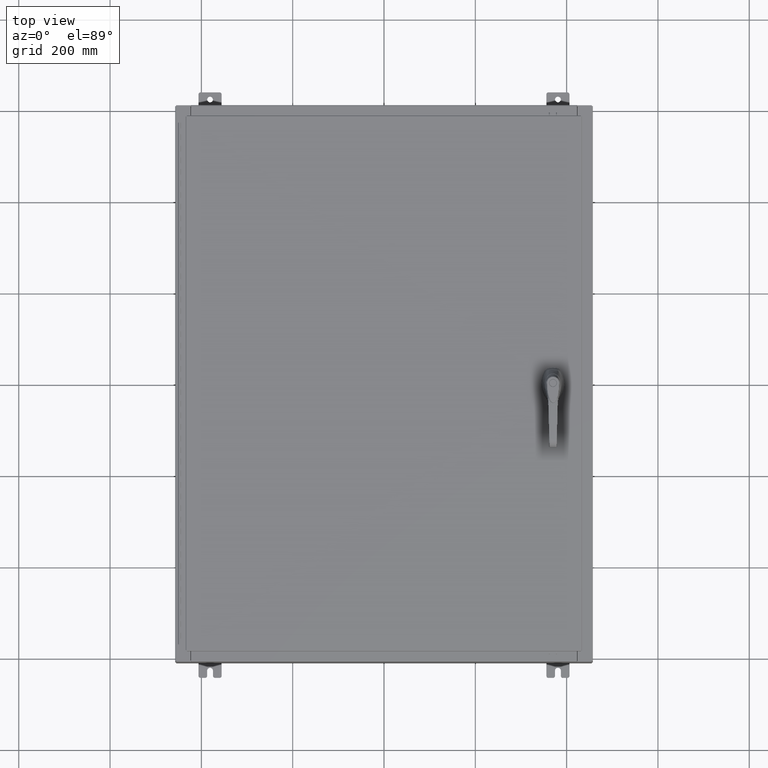
[diagram: clean part render]
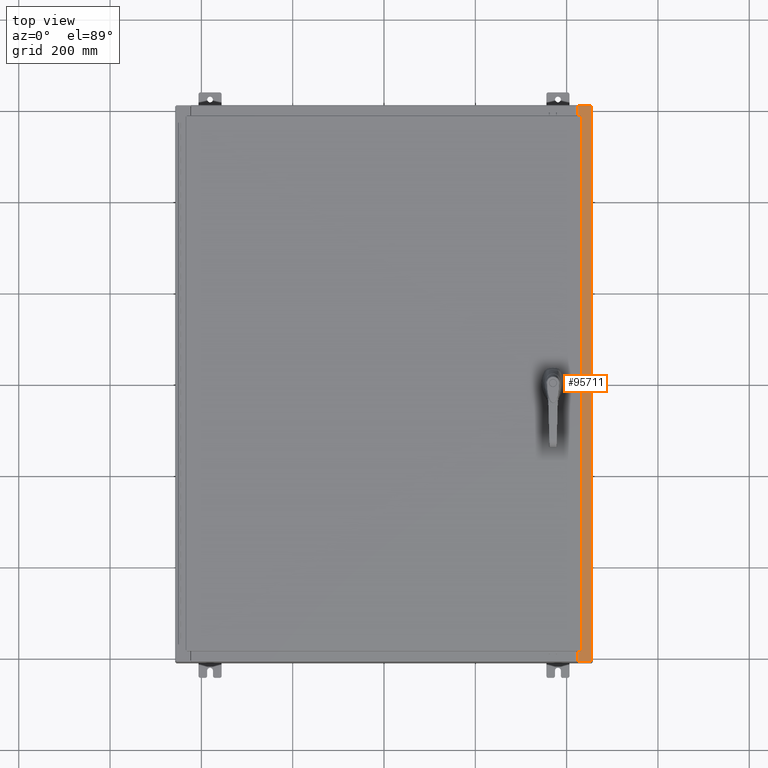
[diagram: same view with one face highlighted and labeled with its STEP entity id]
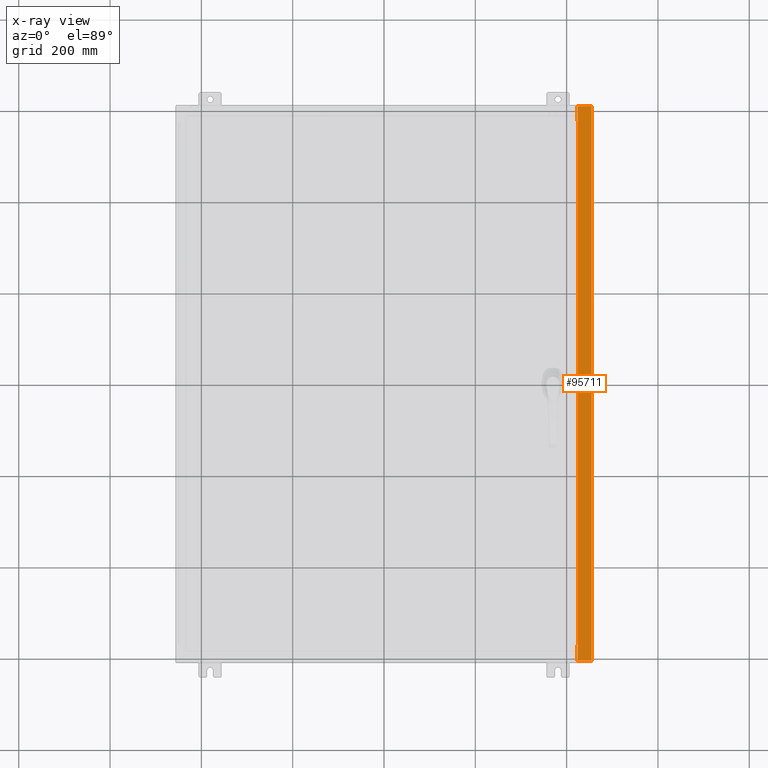
[diagram: x-ray of the same camera — body ghosted, the highlighted face saturated]
A machine part, top view. The second image highlights one B-rep face of the part: STEP entity #95711.
The next image is the same camera in x-ray: the body ghosted, the highlighted face saturated — about 0% of this face is hidden behind the body in this view.
In plain terms, the highlighted planar face has unit normal (-0, 0, -1).
Its self-contained STEP definition (entity closure, byte-faithful):
#1515 = EDGE_CURVE ( 'NONE', #133723, #5691, #109047, .T. ) ;
#1609 = CARTESIAN_POINT ( 'NONE',  ( 16.75005000000002300, 22.63109999999996800, 7.925300000000006200 ) ) ;
#3708 = AXIS2_PLACEMENT_3D ( 'NONE', #106679, #44561, #117106 ) ;
#5015 = VECTOR ( 'NONE', #61032, 39.37007874015748100 ) ;
#5691 = VERTEX_POINT ( 'NONE', #1609 ) ;
#8088 = DIRECTION ( 'NONE',  ( -1.000000000000000000, 2.189528850507527200E-047, 6.241167087353087800E-015 ) ) ;
#9001 = CARTESIAN_POINT ( 'NONE',  ( 17.91230000000002300, 23.92529999999998600, 7.925300000000000000 ) ) ;
#13129 = LINE ( 'NONE', #102741, #34221 ) ;
#14428 = EDGE_CURVE ( 'NONE', #61180, #38561, #38467, .T. ) ;
#14431 = VERTEX_POINT ( 'NONE', #42089 ) ;
#14771 = LINE ( 'NONE', #70241, #121909 ) ;
#15008 = DIRECTION ( 'NONE',  ( -1.615990860825944700E-031, -1.000000000000000000, 1.008566897405026800E-045 ) ) ;
#17093 = ORIENTED_EDGE ( 'NONE', *, *, #108422, .F. ) ;
#18640 = LINE ( 'NONE', #77203, #128870 ) ;
#19012 = EDGE_CURVE ( 'NONE', #124026, #14431, #79773, .T. ) ;
#19242 = EDGE_CURVE ( 'NONE', #85553, #93834, #50506, .T. ) ;
#19549 = ORIENTED_EDGE ( 'NONE', *, *, #26929, .T. ) ;
#22271 = VECTOR ( 'NONE', #112374, 39.37007874015748100 ) ;
#26574 = VERTEX_POINT ( 'NONE', #91743 ) ;
#26929 = EDGE_CURVE ( 'NONE', #94888, #124026, #18640, .T. ) ;
#31600 = CARTESIAN_POINT ( 'NONE',  ( 16.69970000000002500, -2.698656257853499100E-030, 7.925300000000007100 ) ) ;
#31664 = CARTESIAN_POINT ( 'NONE',  ( 16.71270000000002700, 22.59374999999997200, 7.925300000000010700 ) ) ;
#33284 = CARTESIAN_POINT ( 'NONE',  ( 16.69970000000002500, 22.63109999999996800, 7.925300000000007100 ) ) ;
#34221 = VECTOR ( 'NONE', #61086, 39.37007874015748100 ) ;
#38161 = EDGE_CURVE ( 'NONE', #26574, #117315, #103457, .T. ) ;
#38467 = LINE ( 'NONE', #31600, #124397 ) ;
#38561 = VERTEX_POINT ( 'NONE', #33284 ) ;
#39412 = CARTESIAN_POINT ( 'NONE',  ( 4.972393517341168900E-014, 0.0000000000000000000, 7.925300000000111000 ) ) ;
#41014 = CARTESIAN_POINT ( 'NONE',  ( 16.69970000000002500, -22.63109999999998600, 7.925300000000007100 ) ) ;
#42089 = CARTESIAN_POINT ( 'NONE',  ( 17.91230000000002300, -23.92529999999998900, 7.925300000000000000 ) ) ;
#43569 = VERTEX_POINT ( 'NONE', #9001 ) ;
#44561 = DIRECTION ( 'NONE',  ( 6.241167087353086200E-015, 0.0000000000000000000, 1.000000000000000000 ) ) ;
#46054 = CARTESIAN_POINT ( 'NONE',  ( 16.69970000000002500, 23.92529999999998200, 7.925300000000007100 ) ) ;
#46180 = DIRECTION ( 'NONE',  ( -1.000000000000000000, 0.0000000000000000000, -4.340572780400098900E-014 ) ) ;
#49436 = ORIENTED_EDGE ( 'NONE', *, *, #118953, .F. ) ;
#49859 = PLANE ( 'NONE',  #71307 ) ;
#50506 = CIRCLE ( 'NONE', #3708, 0.01867499999999949400 ) ;
#50593 = CARTESIAN_POINT ( 'NONE',  ( 4.972393517341168900E-014, -23.92529999999998900, 7.925300000000111000 ) ) ;
#53642 = DIRECTION ( 'NONE',  ( 6.241167087353086200E-015, 0.0000000000000000000, 1.000000000000000000 ) ) ;
#57300 = LINE ( 'NONE', #62181, #123723 ) ;
#57507 = ORIENTED_EDGE ( 'NONE', *, *, #1515, .F. ) ;
#60290 = DIRECTION ( 'NONE',  ( -1.000000000000000000, 0.0000000000000000000, 6.241167087353086200E-015 ) ) ;
#61032 = DIRECTION ( 'NONE',  ( 1.000000000000000000, 2.036089684584814400E-032, -6.241167087353087800E-015 ) ) ;
#61086 = DIRECTION ( 'NONE',  ( 1.000000000000000000, 0.0000000000000000000, 4.340572780400098900E-014 ) ) ;
#61180 = VERTEX_POINT ( 'NONE', #46054 ) ;
#61696 = DIRECTION ( 'NONE',  ( -0.0000000000000000000, 1.000000000000000000, -0.0000000000000000000 ) ) ;
#62181 = CARTESIAN_POINT ( 'NONE',  ( 17.91230000000002300, -23.92529999999998900, 7.925300000000000000 ) ) ;
#69846 = CARTESIAN_POINT ( 'NONE',  ( 16.75005000000002300, -22.63109999999998600, 7.925300000000006200 ) ) ;
#70241 = CARTESIAN_POINT ( 'NONE',  ( 4.972393517341168900E-014, 23.92529999999998600, 7.925300000000111000 ) ) ;
#70812 = ORIENTED_EDGE ( 'NONE', *, *, #107122, .F. ) ;
#71307 = AXIS2_PLACEMENT_3D ( 'NONE', #39412, #122333, #60290 ) ;
#72588 = DIRECTION ( 'NONE',  ( -0.0000000000000000000, -1.000000000000000000, -0.0000000000000000000 ) ) ;
#75007 = CARTESIAN_POINT ( 'NONE',  ( 16.71270000000002700, 22.59374999999997200, 7.925300000000010700 ) ) ;
#75878 = VECTOR ( 'NONE', #61696, 39.37007874015748100 ) ;
#77203 = CARTESIAN_POINT ( 'NONE',  ( 16.69970000000002500, -2.698656257853499100E-030, 7.925300000000007100 ) ) ;
#79773 = LINE ( 'NONE', #50593, #5015 ) ;
#79823 = EDGE_CURVE ( 'NONE', #117315, #133723, #82451, .T. ) ;
#81148 = ORIENTED_EDGE ( 'NONE', *, *, #113226, .F. ) ;
#82451 = LINE ( 'NONE', #75007, #134309 ) ;
#85553 = VERTEX_POINT ( 'NONE', #69846 ) ;
#86505 = ORIENTED_EDGE ( 'NONE', *, *, #93952, .T. ) ;
#87048 = CARTESIAN_POINT ( 'NONE',  ( 16.75005000000002300, -22.59374999999998900, 7.925300000000006200 ) ) ;
#91743 = CARTESIAN_POINT ( 'NONE',  ( 16.71270000000002700, -22.59374999999998900, 7.925300000000010700 ) ) ;
#93340 = CARTESIAN_POINT ( 'NONE',  ( 16.71270000000002700, -22.59374999999998900, 7.925300000000010700 ) ) ;
#93834 = VERTEX_POINT ( 'NONE', #87048 ) ;
#93952 = EDGE_CURVE ( 'NONE', #43569, #61180, #14771, .T. ) ;
#94301 = ORIENTED_EDGE ( 'NONE', *, *, #38161, .F. ) ;
#94888 = VERTEX_POINT ( 'NONE', #41014 ) ;
#95711 = ADVANCED_FACE ( 'NONE', ( #125175 ), #49859, .F. ) ;
#95812 = DIRECTION ( 'NONE',  ( 1.000000000000000000, 0.0000000000000000000, 0.0000000000000000000 ) ) ;
#96678 = LINE ( 'NONE', #108271, #121018 ) ;
#101351 = ORIENTED_EDGE ( 'NONE', *, *, #14428, .T. ) ;
#101943 = CARTESIAN_POINT ( 'NONE',  ( 16.75005000000002300, -22.59374999999998900, 7.925300000000010700 ) ) ;
#102741 = CARTESIAN_POINT ( 'NONE',  ( 16.69970000000002500, -22.63109999999998600, 7.925300000000008900 ) ) ;
#103457 = LINE ( 'NONE', #93340, #75878 ) ;
#104185 = DIRECTION ( 'NONE',  ( -1.615990860825944700E-031, -1.000000000000000000, 1.008566897405026800E-045 ) ) ;
#105003 = LINE ( 'NONE', #101943, #22271 ) ;
#106679 = CARTESIAN_POINT ( 'NONE',  ( 16.75005000000002300, -22.61242499999998800, 7.925300000000010700 ) ) ;
#107122 = EDGE_CURVE ( 'NONE', #93834, #26574, #105003, .T. ) ;
#108271 = CARTESIAN_POINT ( 'NONE',  ( 16.75005000000002300, 22.63109999999996800, 7.925300000000010700 ) ) ;
#108422 = EDGE_CURVE ( 'NONE', #5691, #38561, #96678, .T. ) ;
#109047 = CIRCLE ( 'NONE', #115507, 0.01867499999999949400 ) ;
#112374 = DIRECTION ( 'NONE',  ( -1.000000000000000000, 0.0000000000000000000, 0.0000000000000000000 ) ) ;
#113226 = EDGE_CURVE ( 'NONE', #94888, #85553, #13129, .T. ) ;
#115507 = AXIS2_PLACEMENT_3D ( 'NONE', #127230, #53642, #121079 ) ;
#117106 = DIRECTION ( 'NONE',  ( 1.000000000000000000, 0.0000000000000000000, 0.0000000000000000000 ) ) ;
#117315 = VERTEX_POINT ( 'NONE', #31664 ) ;
#118953 = EDGE_CURVE ( 'NONE', #43569, #14431, #57300, .T. ) ;
#121018 = VECTOR ( 'NONE', #46180, 39.37007874015748100 ) ;
#121079 = DIRECTION ( 'NONE',  ( 1.000000000000000000, 0.0000000000000000000, 0.0000000000000000000 ) ) ;
#121909 = VECTOR ( 'NONE', #8088, 39.37007874015748100 ) ;
#122333 = DIRECTION ( 'NONE',  ( -6.241167087353086200E-015, 0.0000000000000000000, -1.000000000000000000 ) ) ;
#123723 = VECTOR ( 'NONE', #72588, 39.37007874015748100 ) ;
#123796 = ORIENTED_EDGE ( 'NONE', *, *, #19012, .T. ) ;
#123886 = CARTESIAN_POINT ( 'NONE',  ( 16.69970000000002500, -23.92529999999998900, 7.925300000000007100 ) ) ;
#124026 = VERTEX_POINT ( 'NONE', #123886 ) ;
#124397 = VECTOR ( 'NONE', #104185, 39.37007874015748100 ) ;
#124774 = CARTESIAN_POINT ( 'NONE',  ( 16.75005000000002300, 22.59374999999997200, 7.925300000000006200 ) ) ;
#125073 = ORIENTED_EDGE ( 'NONE', *, *, #19242, .F. ) ;
#125175 = FACE_OUTER_BOUND ( 'NONE', #127019, .T. ) ;
#126118 = ORIENTED_EDGE ( 'NONE', *, *, #79823, .F. ) ;
#127019 = EDGE_LOOP ( 'NONE', ( #81148, #19549, #123796, #49436, #86505, #101351, #17093, #57507, #126118, #94301, #70812, #125073 ) ) ;
#127230 = CARTESIAN_POINT ( 'NONE',  ( 16.75005000000002300, 22.61242499999997000, 7.925300000000010700 ) ) ;
#128870 = VECTOR ( 'NONE', #15008, 39.37007874015748100 ) ;
#133723 = VERTEX_POINT ( 'NONE', #124774 ) ;
#134309 = VECTOR ( 'NONE', #95812, 39.37007874015748100 ) ;